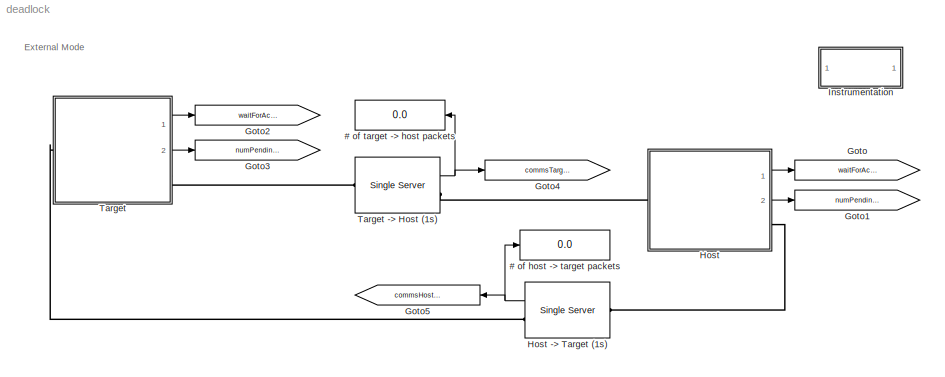
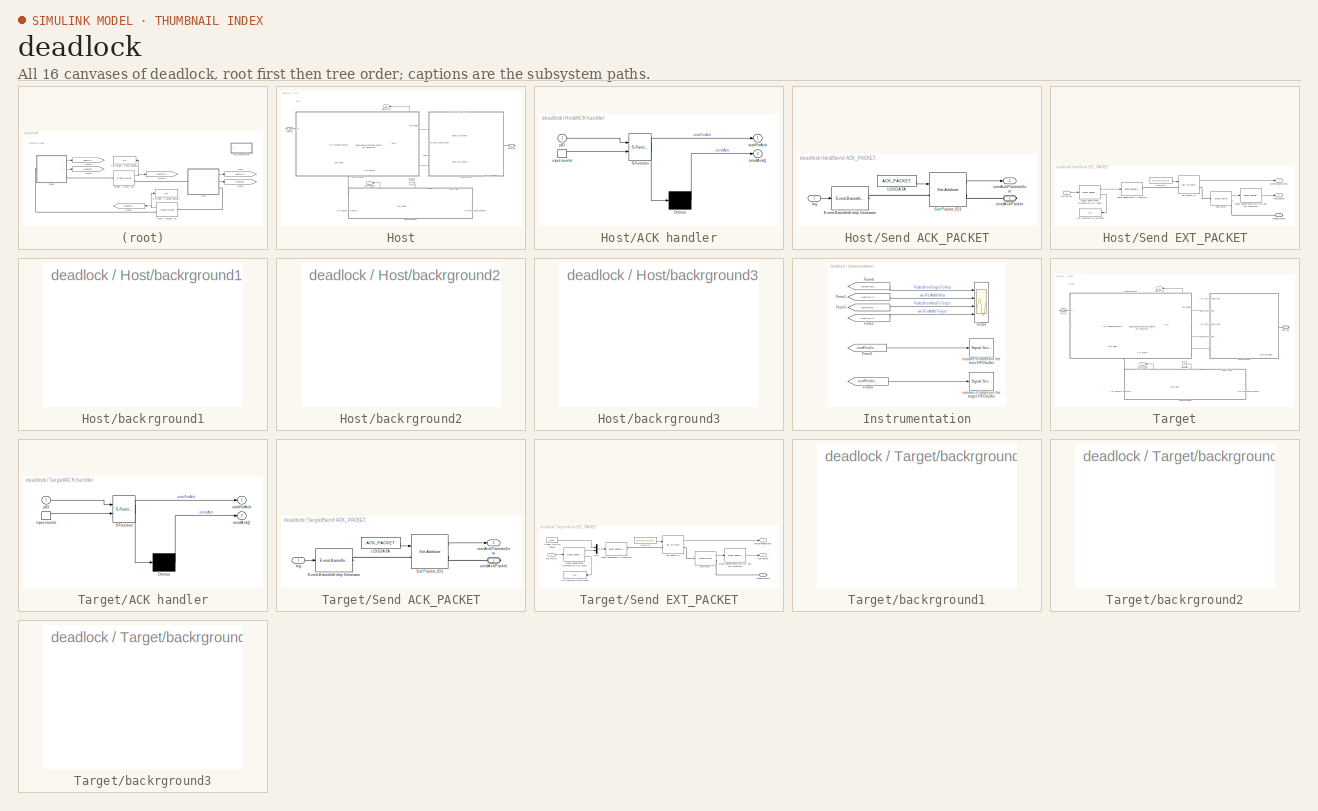
[diagram: thumbnail index - all 16 canvases of the model, root first then tree order]
MODEL deadlock
KIND model
CONFIG InitFcn = EXT_PACKET = 1;\nACK_PACKET = 2;\nRX = 1;\nTX = 2;\nCOMMS_DELAY = 1;\n\n
BLOCK [Display] # of host -> target packets
  Decimation = 1
  Ports = [1]
  SID = 13305
BLOCK [Display] # of target -> host packets
  Decimation = 1
  Ports = [1]
  SID = 13304
BLOCK [Goto] Goto
  GotoTag = waitForAckOnHost
  SID = 5305
  TagVisibility = global
BLOCK [Goto] Goto1
  GotoTag = numPendingOnHost
  SID = 5307
  TagVisibility = global
BLOCK [Goto] Goto2
  GotoTag = waitForAckOnTarget
  SID = 5325
  TagVisibility = global
BLOCK [Goto] Goto3
  GotoTag = numPendingOnTarget
  SID = 5326
  TagVisibility = global
BLOCK [Goto] Goto4
  GotoTag = commsTargetToHost
  SID = 8656
  TagVisibility = global
BLOCK [Goto] Goto5
  GotoTag = commsHostToTarget
  SID = 11776
  TagVisibility = global
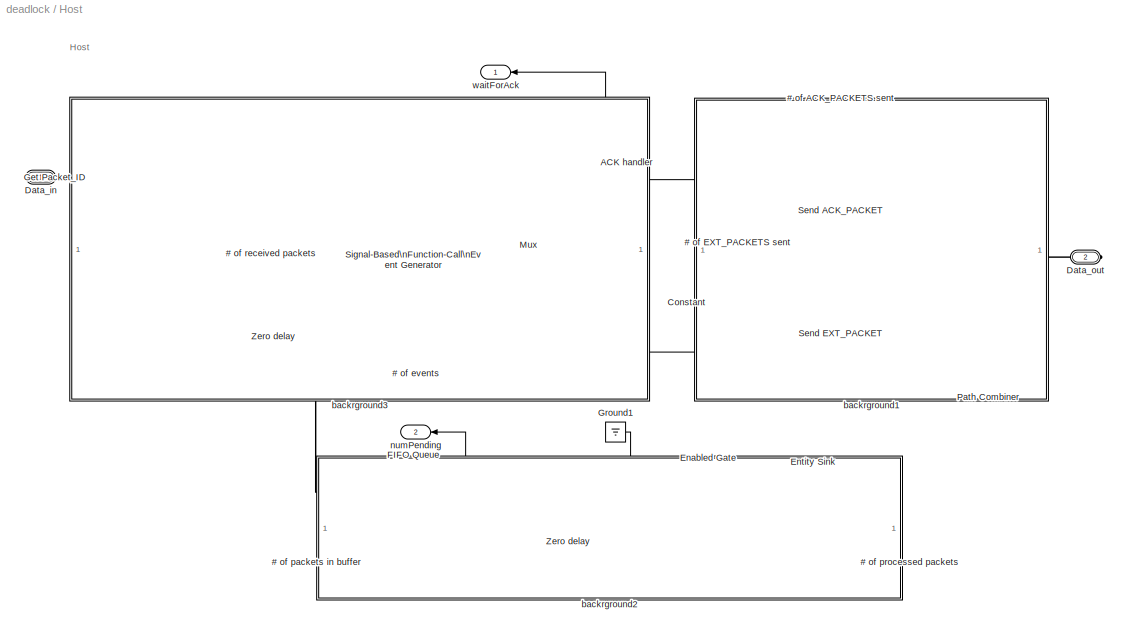
BLOCK [SubSystem] Host
  Ports = [0, 2, 0, 0, 0, 1, 1]
  RequestExecContextInheritance = off
  SID = 2100
BLOCK [Reference] Host -> Target (1s)  REF=simeventsserver1/Single Server
  AttributeName = ServiceTime
  CreateAttribute = on
  EnableTOPort = off
  FunctionWithSeparateData = off
  PermitPreemption = off
  Ports = [0, 1, 0, 0, 0, 1, 1]
  Priority = 1
  PriorityServiceCompletion = 1
  RTWMemSecDataConstants = Inherit from model
  RTWMemSecDataInternal = Inherit from model
  RTWMemSecDataParameters = Inherit from model
  RTWMemSecFuncExecute = Inherit from model
  RTWMemSecFuncInitTerm = Inherit from model
  ResidualAttributeName = ResidualServiceTime
  SID = 8654
  ServiceTime = COMMS_DELAY
  ServiceTimeFrom = Dialog
  ShowPortLabels = FromPortIcon
  SortingAttributeName = PriorityAttributeName
  SortingDirection = Ascending
  SourceBlock = simeventsserver1/Single Server
  SourceType = Single Server
  StatAverageWait = Off
  StatNumberDeparted = On
  StatNumberInBlock = Off
  StatNumberPreempted = Off
  StatNumberTimedout = Off
  StatPendingEntity = Off
  StatUtilization = Off
  SystemSampleTime = -1
  UserData = DataTag15
  UserDataPersistent = on
  WriteToAttribute = off
BLOCK [Display] Host/# of ACK_PACKETS sent
  Decimation = 1
  Ports = [1]
  SID = 15166
BLOCK [Display] Host/# of EXT_PACKETS sent
  Decimation = 1
  Ports = [1]
  SID = 15167
BLOCK [Display] Host/# of events
  Decimation = 1
  Ports = [1]
  SID = 12946
BLOCK [Display] Host/# of packets in buffer
  Decimation = 1
  Ports = [1]
  SID = 22557
BLOCK [Display] Host/# of processed packets
  Decimation = 1
  Ports = [1]
  SID = 2101
BLOCK [Display] Host/# of received packets
  Decimation = 1
  Ports = [1]
  SID = 17299
BLOCK [SubSystem] Host/ACK handler
  ErrorFcn = Stateflow.Translate.translate
  PermitHierarchicalResolution = ExplicitOnly
  Ports = [1, 2, 0, 1]
  PropExecContextOutsideSubsystem = on
  RequestExecContextInheritance = off
  SFBlockType = Chart
  SID = 23256
  TreatAsAtomicUnit = on
BLOCK [Demux] Host/ACK handler/ Demux 
  Outputs = 1
  Ports = [1, 1]
  SID = 23256::15
BLOCK [S-Function] Host/ACK handler/ SFunction 
  EnableBusSupport = off
  FunctionName = sf_sfun
  Parameters = ACK_PACKET,EXT_PACKET
  PortCounts = [2 2]
  Ports = [2, 2]
  SFcnIsStateOwnerBlock = off
  SFunctionDeploymentMode = off
  SID = 23256::14
  Tag = Stateflow S-Function 2
BLOCK [TriggerPort] Host/ACK handler/ input events 
  Ports = [0, 1]
  SID = 23256::1
  ShowOutputPort = on
  TriggerType = function-call
  VariantControl = (inherit)
BLOCK [Inport] Host/ACK handler/pID
  IconDisplay = Port number
  SID = 23256::10
BLOCK [Outport] Host/ACK handler/sendAck()
  IconDisplay = Port number
  Port = 2
  SID = 23256::13
BLOCK [Outport] Host/ACK handler/waitForAck
  IconDisplay = Port number
  SID = 23256::5
BLOCK [Constant] Host/Constant
  SID = 2376
BLOCK [PMIOPort] Host/Data_in
  SID = 2137
  Side = Left
BLOCK [PMIOPort] Host/Data_out
  Port = 2
  SID = 2138
  Side = Right
BLOCK [Reference] Host/Enabled Gate  REF=simeventsgates1/Enabled Gate
  FunctionWithSeparateData = off
  Ports = [1, 0, 0, 0, 0, 1, 1]
  Priority = 1
  PriorityGateEnableOpenClose = 2000
  RTWMemSecDataConstants = Inherit from model
  RTWMemSecDataInternal = Inherit from model
  RTWMemSecDataParameters = Inherit from model
  RTWMemSecFuncExecute = Inherit from model
  RTWMemSecFuncInitTerm = Inherit from model
  SID = 6011
  ShowPortLabels = FromPortIcon
  SourceBlock = simeventsgates1/Enabled Gate
  SourceType = Enabled Gate
  SpecifyEventPriority = off
  StatNumberDeparted = Off
  SystemSampleTime = -1
  UserData = DataTag0
  UserDataPersistent = on
BLOCK [Reference] Host/Entity Sink  REF=simeventssink1/Entity Sink
  AvailableForArrivals = on
  FunctionWithSeparateData = off
  Ports = [0, 1, 0, 0, 0, 1]
  Priority = 1
  RTWMemSecDataConstants = Inherit from model
  RTWMemSecDataInternal = Inherit from model
  RTWMemSecDataParameters = Inherit from model
  RTWMemSecFuncExecute = Inherit from model
  RTWMemSecFuncInitTerm = Inherit from model
  SID = 2103
  ShowPortLabels = FromPortIcon
  SourceBlock = simeventssink1/Entity Sink
  SourceType = Entity Sink
  StatNumberArrived = On
  SystemSampleTime = -1
  UserData = DataTag1
  UserDataPersistent = on
BLOCK [Reference] Host/FIFO Queue  REF=simeventsqueue1/FIFO Queue
  AttributesFormatString = Capacity = %<Capacity>
  Capacity = 2
  EnableTOPort = off
  FunctionWithSeparateData = off
  Ports = [0, 1, 0, 0, 0, 1, 1]
  Priority = 1
  RTWMemSecDataConstants = Inherit from model
  RTWMemSecDataInternal = Inherit from model
  RTWMemSecDataParameters = Inherit from model
  RTWMemSecFuncExecute = Inherit from model
  RTWMemSecFuncInitTerm = Inherit from model
  SID = 2104
  ShowPortLabels = FromPortIcon
  SourceBlock = simeventsqueue1/FIFO Queue
  SourceType = FIFO Queue
  StatAverageQueueLength = Off
  StatAverageWait = Off
  StatNumberDeparted = Off
  StatNumberInBlock = On
  StatNumberTimedout = Off
  StatPendingEntity = Off
  SystemSampleTime = -1
  UserData = DataTag2
  UserDataPersistent = on
BLOCK [Reference] Host/Get Packet_ID  REF=simeventsattributes2/Get Attribute
  AttributeDefaultValue = 1
  AttributeMissing = Error
  AttributeName = PacketID
  AttributeSendTiming = After entity departure
  AttributeTreatAsVector = 1
  EvaluatedDefaultAttributeValue = {[]}
  FunctionWithSeparateData = off
  Ports = [0, 1, 0, 0, 0, 1, 1]
  Priority = 1
  RTWMemSecDataConstants = Inherit from model
  RTWMemSecDataInternal = Inherit from model
  RTWMemSecDataParameters = Inherit from model
  RTWMemSecFuncExecute = Inherit from model
  RTWMemSecFuncInitTerm = Inherit from model
  SID = 2105
  ShowPortLabels = FromPortIcon
  SourceBlock = simeventsattributes2/Get Attribute
  SourceType = Get Attribute
  StatNumberDeparted = Off
  SystemSampleTime = -1
  UserData = DataTag3
  UserDataPersistent = on
BLOCK [Ground] Host/Ground1
  SID = 20376
BLOCK [Mux] Host/Mux
  DisplayOption = bar
  Inputs = 2
  Ports = [2, 1]
  SID = 19210
BLOCK [Reference] Host/Path Combiner  REF=simeventsrouting1/Path Combiner
  EvaluatedNumPorts = 2
  FunctionWithSeparateData = off
  InitialSeed = 45675
  InputPortPrecedence = IN1 port
  NumberInputPorts = 2
  Ports = [0, 0, 0, 0, 0, 2, 1]
  Priority = 1
  PriorityPathCombinerPortPrecedenceSelection = 4100
  RTWMemSecDataConstants = Inherit from model
  RTWMemSecDataInternal = Inherit from model
  RTWMemSecDataParameters = Inherit from model
  RTWMemSecFuncExecute = Inherit from model
  RTWMemSecFuncInitTerm = Inherit from model
  SID = 2108
  ShowPortLabels = FromPortIcon
  SourceBlock = simeventsrouting1/Path Combiner
  SourceType = Path Combiner
  SpecifyEventPriority = off
  StatLastArrivalPort = Off
  StatNumberDeparted = Off
  SystemSampleTime = -1
  UserData = DataTag4
  UserDataPersistent = on
BLOCK [SubSystem] Host/Send ACK_PACKET
  Ports = [1, 1, 0, 0, 0, 0, 1]
  RequestExecContextInheritance = off
  SID = 2110
BLOCK [Reference] Host/Send ACK_PACKET/Event-Based\nEntity Generator  REF=simeventsgenerators1/Entity Generators/Event-Based\nEntity Generator
  AllowBlocking = on
  EntityType = Blank
  FunctionWithSeparateData = off
  GenerateEntitiesUpon = Function call from port fcn
  GenerateEntityAtSimulationStart = on
  Ports = [1, 0, 0, 0, 0, 0, 1]
  Priority = 1
  PriorityEntityGeneration = 300
  RTWMemSecDataConstants = Inherit from model
  RTWMemSecDataInternal = Inherit from model
  RTWMemSecDataParameters = Inherit from model
  RTWMemSecFuncExecute = Inherit from model
  RTWMemSecFuncInitTerm = Inherit from model
  ResponseDuringBlockage = Delay first pending entity
  SID = 2112
  ShowPortLabels = FromPortIcon
  SignalEdgeType = Rising
  SourceBlock = simeventsgenerators1/Entity Generators/Event-Based\nEntity Generator
  SourceType = Event-Based Entity Generator
  SpecifyEventPriority = off
  StatAverageIntergenerationTime = Off
  StatNumberDeparted = Off
  StatPendingEntity = Off
  SystemSampleTime = -1
  UserData = DataTag5
  UserDataPersistent = on
BLOCK [Constant] Host/Send ACK_PACKET/LOGDATA
  SID = 2113
  Value = ACK_PACKET
BLOCK [Reference] Host/Send ACK_PACKET/Set Packet_ID1  REF=simeventsattributes2/Set Attribute
  AttributeCreate = on
  AttributeFrom = Signal port
  AttributeName = PacketID
  AttributeTreatAsVector = 1
  AttributeValue = 1
  EvaluatedAttributeValue = {[]}
  FunctionWithSeparateData = off
  Ports = [1, 1, 0, 0, 0, 1, 1]
  Priority = 1
  RTWMemSecDataConstants = Inherit from model
  RTWMemSecDataInternal = Inherit from model
  RTWMemSecDataParameters = Inherit from model
  RTWMemSecFuncExecute = Inherit from model
  RTWMemSecFuncInitTerm = Inherit from model
  SID = 2114
  ShowPortLabels = FromPortIcon
  SourceBlock = simeventsattributes2/Set Attribute
  SourceType = Set Attribute
  StatNumberDeparted = On
  SystemSampleTime = -1
  UserData = DataTag6
  UserDataPersistent = on
BLOCK [Outport] Host/Send ACK_PACKET/numAckPacketsSent
  IconDisplay = Port number
  SID = 15165
BLOCK [PMIOPort] Host/Send ACK_PACKET/sendAckPacket
  SID = 2116
  Side = Right
BLOCK [Inport] Host/Send ACK_PACKET/trig
  IconDisplay = Port number
  SID = 2111
BLOCK [SubSystem] Host/Send EXT_PACKET
  Ports = [1, 2, 0, 0, 0, 0, 1]
  RequestExecContextInheritance = off
  SID = 22444
BLOCK [Display] Host/Send EXT_PACKET/# of received ACK_PACKETS
  Decimation = 1
  Ports = [1]
  SID = 22446
BLOCK [Reference] Host/Send EXT_PACKET/Event-Based\nEntity Generator  REF=simeventsgenerators1/Entity Generators/Event-Based\nEntity Generator
  AllowBlocking = on
  EntityType = Blank
  FunctionWithSeparateData = off
  GenerateEntitiesUpon = Function call from port fcn
  GenerateEntityAtSimulationStart = on
  Ports = [1, 0, 0, 0, 0, 0, 1]
  Priority = 1
  PriorityEntityGeneration = 300
  RTWMemSecDataConstants = Inherit from model
  RTWMemSecDataInternal = Inherit from model
  RTWMemSecDataParameters = Inherit from model
  RTWMemSecFuncExecute = Inherit from model
  RTWMemSecFuncInitTerm = Inherit from model
  ResponseDuringBlockage = Delay first pending entity
  SID = 22447
  ShowPortLabels = FromPortIcon
  SignalEdgeType = Falling
  SourceBlock = simeventsgenerators1/Entity Generators/Event-Based\nEntity Generator
  SourceType = Event-Based Entity Generator
  SpecifyEventPriority = off
  StatAverageIntergenerationTime = Off
  StatNumberDeparted = Off
  StatPendingEntity = Off
  SystemSampleTime = -1
  UserData = DataTag7
  UserDataPersistent = on
BLOCK [Constant] Host/Send EXT_PACKET/LOGDATA
  SID = 22448
  Value = EXT_PACKET
BLOCK [Reference] Host/Send EXT_PACKET/Set Packet_ID  REF=simeventsattributes2/Set Attribute
  AttributeCreate = on
  AttributeFrom = Signal port
  AttributeName = PacketID
  AttributeTreatAsVector = 1
  AttributeValue = 1
  EvaluatedAttributeValue = {[]}
  FunctionWithSeparateData = off
  Ports = [1, 1, 0, 0, 0, 1, 1]
  Priority = 1
  RTWMemSecDataConstants = Inherit from model
  RTWMemSecDataInternal = Inherit from model
  RTWMemSecDataParameters = Inherit from model
  RTWMemSecFuncExecute = Inherit from model
  RTWMemSecFuncInitTerm = Inherit from model
  SID = 22450
  ShowPortLabels = FromPortIcon
  SourceBlock = simeventsattributes2/Set Attribute
  SourceType = Set Attribute
  StatNumberDeparted = On
  SystemSampleTime = -1
  UserData = DataTag8
  UserDataPersistent = on
BLOCK [Reference] Host/Send EXT_PACKET/Signal-Based Event to\nFunction-Call Event  REF=simeventstranslate1/Signal-Based Event to\nFunction-Call Event
  DelayFunctionCall = 0
  EnableE1Port = off
  EnableE2Port = off
  EnableF2Port = off
  FunctionCallDelayFrom = Dialog
  FunctionWithSeparateData = off
  GenerateFunctionCallUpon = Change in signal from port vc
  MaskBlockType = none
  Ports = [1, 2]
  Priority = 1
  PriorityFunctionCall = 200
  RTWMemSecDataConstants = Inherit from model
  RTWMemSecDataInternal = Inherit from model
  RTWMemSecDataParameters = Inherit from model
  RTWMemSecFuncExecute = Inherit from model
  RTWMemSecFuncInitTerm = Inherit from model
  SID = 22452
  ShowPortLabels = FromPortIcon
  SignalEdgeOption = Falling
  SourceBlock = simeventstranslate1/Signal-Based Event to\nFunction-Call Event
  SourceType = Signal-Based Event to Function-Call Event
  SpecifyEventPriority = off
  StatNumberF1Calls = On
  StatNumberF2Calls = Off
  SystemSampleTime = -1
  UserData = DataTag10
  UserDataPersistent = on
BLOCK [Reference] Host/Send EXT_PACKET/Signal-Based\nFunction-Call\nEvent Generator  REF=simeventsgenerators1/Event Generators/Signal-Based\nFunction-Call\nEvent Generator
  DelayFunctionCall = 0
  EnableE1Port = off
  EnableE2Port = off
  EnableF2Port = off
  FunctionCallDelayFrom = Dialog
  FunctionWithSeparateData = off
  GenerateFunctionCallUpon = Change in signal from port vc
  MaskBlockType = none
  Ports = [1, 1]
  Priority = 1
  PriorityFunctionCall = 200
  RTWMemSecDataConstants = Inherit from model
  RTWMemSecDataInternal = Inherit from model
  RTWMemSecDataParameters = Inherit from model
  RTWMemSecFuncExecute = Inherit from model
  RTWMemSecFuncInitTerm = Inherit from model
  SID = 22451
  ShowPortLabels = FromPortIcon
  SignalEdgeOption = Either
  SourceBlock = simeventsgenerators1/Event Generators/Signal-Based\nFunction-Call\nEvent Generator
  SourceType = Signal-Based Function-Call Event Generator
  SpecifyEventPriority = off
  StatNumberF1Calls = Off
  StatNumberF2Calls = Off
  SystemSampleTime = -1
  UserData = DataTag9
  UserDataPersistent = on
BLOCK [Reference] Host/Send EXT_PACKET/Zero delay   REF=simeventsserver1/Single Server
  AttributeName = ServiceTime
  CreateAttribute = on
  EnableTOPort = off
  FunctionWithSeparateData = off
  PermitPreemption = off
  Ports = [0, 1, 0, 0, 0, 1, 1]
  Priority = 1
  PriorityServiceCompletion = 1
  RTWMemSecDataConstants = Inherit from model
  RTWMemSecDataInternal = Inherit from model
  RTWMemSecDataParameters = Inherit from model
  RTWMemSecFuncExecute = Inherit from model
  RTWMemSecFuncInitTerm = Inherit from model
  ResidualAttributeName = ResidualServiceTime
  SID = 22453
  ServiceTime = 0
  ServiceTimeFrom = Dialog
  ShowPortLabels = FromPortIcon
  SortingAttributeName = PriorityAttributeName
  SortingDirection = Ascending
  SourceBlock = simeventsserver1/Single Server
  SourceType = Single Server
  StatAverageWait = Off
  StatNumberDeparted = Off
  StatNumberInBlock = On
  StatNumberPreempted = Off
  StatNumberTimedout = Off
  StatPendingEntity = Off
  StatUtilization = Off
  SystemSampleTime = -1
  UserData = DataTag11
  UserDataPersistent = on
  WriteToAttribute = off
BLOCK [Outport] Host/Send EXT_PACKET/numExtPacketsSent
  IconDisplay = Port number
  SID = 22456
BLOCK [PMIOPort] Host/Send EXT_PACKET/sendExtPacket
  SID = 22455
  Side = Right
BLOCK [Outport] Host/Send EXT_PACKET/txExtPacket
  IconDisplay = Port number
  Port = 2
  SID = 22457
BLOCK [Inport] Host/Send EXT_PACKET/waitForAck
  IconDisplay = Port number
  SID = 22445
BLOCK [Reference] Host/Signal-Based\nFunction-Call\nEvent Generator  REF=simeventsgenerators1/Event Generators/Signal-Based\nFunction-Call\nEvent Generator
  DelayFunctionCall = 0
  EnableE1Port = off
  EnableE2Port = off
  EnableF2Port = off
  FunctionCallDelayFrom = Dialog
  FunctionWithSeparateData = off
  GenerateFunctionCallUpon = Change in signal from port vc
  MaskBlockType = none
  Ports = [1, 2]
  Priority = 1
  PriorityFunctionCall = 200
  RTWMemSecDataConstants = Inherit from model
  RTWMemSecDataInternal = Inherit from model
  RTWMemSecDataParameters = Inherit from model
  RTWMemSecFuncExecute = Inherit from model
  RTWMemSecFuncInitTerm = Inherit from model
  SID = 7129
  ShowPortLabels = FromPortIcon
  SignalEdgeOption = Either
  SourceBlock = simeventsgenerators1/Event Generators/Signal-Based\nFunction-Call\nEvent Generator
  SourceType = Signal-Based Function-Call Event Generator
  SpecifyEventPriority = off
  StatNumberF1Calls = On
  StatNumberF2Calls = Off
  SystemSampleTime = -1
  UserData = DataTag12
  UserDataPersistent = on
BLOCK [Reference] Host/Zero delay  REF=simeventsserver1/Single Server
  AttributeName = ServiceTime
  CreateAttribute = on
  EnableTOPort = off
  FunctionWithSeparateData = off
  PermitPreemption = off
  Ports = [0, 0, 0, 0, 0, 1, 1]
  Priority = 1
  PriorityServiceCompletion = 1
  RTWMemSecDataConstants = Inherit from model
  RTWMemSecDataInternal = Inherit from model
  RTWMemSecDataParameters = Inherit from model
  RTWMemSecFuncExecute = Inherit from model
  RTWMemSecFuncInitTerm = Inherit from model
  ResidualAttributeName = ResidualServiceTime
  SID = 2657
  ServiceTime = 0
  ServiceTimeFrom = Dialog
  ShowPortLabels = FromPortIcon
  SortingAttributeName = PriorityAttributeName
  SortingDirection = Ascending
  SourceBlock = simeventsserver1/Single Server
  SourceType = Single Server
  StatAverageWait = Off
  StatNumberDeparted = Off
  StatNumberInBlock = Off
  StatNumberPreempted = Off
  StatNumberTimedout = Off
  StatPendingEntity = Off
  StatUtilization = Off
  SystemSampleTime = -1
  UserData = DataTag13
  UserDataPersistent = on
  WriteToAttribute = off
BLOCK [Reference] Host/Zero delay   REF=simeventsserver1/Single Server
  AttributeName = ServiceTime
  CreateAttribute = on
  EnableTOPort = off
  FunctionWithSeparateData = off
  PermitPreemption = off
  Ports = [0, 2, 0, 0, 0, 1, 1]
  Priority = 1
  PriorityServiceCompletion = 1
  RTWMemSecDataConstants = Inherit from model
  RTWMemSecDataInternal = Inherit from model
  RTWMemSecDataParameters = Inherit from model
  RTWMemSecFuncExecute = Inherit from model
  RTWMemSecFuncInitTerm = Inherit from model
  ResidualAttributeName = ResidualServiceTime
  SID = 7805
  ServiceTime = 0
  ServiceTimeFrom = Dialog
  ShowPortLabels = FromPortIcon
  SortingAttributeName = PriorityAttributeName
  SortingDirection = Ascending
  SourceBlock = simeventsserver1/Single Server
  SourceType = Single Server
  StatAverageWait = Off
  StatNumberDeparted = On
  StatNumberInBlock = On
  StatNumberPreempted = Off
  StatNumberTimedout = Off
  StatPendingEntity = Off
  StatUtilization = Off
  SystemSampleTime = -1
  UserData = DataTag14
  UserDataPersistent = on
  WriteToAttribute = off
BLOCK [SubSystem] Host/backrground1
  Ports = []
  RequestExecContextInheritance = off
  SID = 20461
BLOCK [SubSystem] Host/backrground2
  Ports = []
  RequestExecContextInheritance = off
  SID = 20460
BLOCK [SubSystem] Host/backrground3
  Ports = []
  RequestExecContextInheritance = off
  SID = 20462
BLOCK [Outport] Host/numPending
  IconDisplay = Port number
  Port = 2
  SID = 5308
BLOCK [Outport] Host/waitForAck
  IconDisplay = Port number
  SID = 5306
BLOCK [SubSystem] Instrumentation
  Ports = []
  RequestExecContextInheritance = on
  SID = 4
BLOCK [From] Instrumentation/From1
  CloseFcn = tagdialog Close
  GotoTag = waitForAckOnHost
  SID = 22
  TagVisibility = global
BLOCK [From] Instrumentation/From2
  CloseFcn = tagdialog Close
  GotoTag = waitForAckOnTarget
  SID = 2512
  TagVisibility = global
BLOCK [From] Instrumentation/From3
  CloseFcn = tagdialog Close
  GotoTag = numPendingOnHost
  SID = 24
  TagVisibility = global
BLOCK [From] Instrumentation/From4
  CloseFcn = tagdialog Close
  GotoTag = numPendingOnTarget
  SID = 2513
  TagVisibility = global
BLOCK [From] Instrumentation/From5
  CloseFcn = tagdialog Close
  GotoTag = commsHostToTarget
  SID = 11777
  TagVisibility = global
BLOCK [From] Instrumentation/From6
  CloseFcn = tagdialog Close
  GotoTag = commsTargetToHost
  SID = 11778
  TagVisibility = global
BLOCK [Scope] Instrumentation/Scope
  Floating = off
  NumInputPorts = 4
  Ports = [4]
  SID = 343
  ScopeSpecificationString = C++SS(StrPVP('Location','[888, 200, 1214, 665]'),StrPVP('Open','off'),MxPVP('AxesTitles',54,'struct(''axes1'',''%<SignalLabel>'',''axes2'',''%<SignalLabel>'',''axes3'',''%<SignalLabel>'',''axes4'',''%<SignalLabel>'')'),StrPVP('TimeRange','10'),StrPVP('YMin','-1~-1~-1~-1'),StrPVP('YMax','5~5~5~5'),StrPVP('DataFormat','StructureWithTime'),StrPVP('LimitDataPoints','off'),StrPVP('BlockParamSampleTime'...<+69ch>
BLOCK [Reference] Instrumentation/number of bytes\nin the host FIFO buffer  REF=simeventssink1/Signal Scope
  AttributeNameX = Count
  AttributeNameY = Count
  AxisGrid = on
  AxisLegend = off
  AxisZoom = off
  DataPointsLimit = 10000
  DataStoreOption = Limited
  EnableEntityOutport = on
  FigurePosition = [72 229 231 135]
  FunctionWithSeparateData = off
  InputType = Signal
  LineColors = b
  LineMarkers = .
  LineStyles = -
  NumInputs = 1
  OpenScopeAtSimStart = on
  PlotType = Stair
  Ports = [1]
  Priority = 1
  RTWMemSecDataConstants = Inherit from model
  RTWMemSecDataInternal = Inherit from model
  RTWMemSecDataParameters = Inherit from model
  RTWMemSecFuncExecute = Inherit from model
  RTWMemSecFuncInitTerm = Inherit from model
  SID = 5
  ShowCountPlotted = off
  ShowPortLabels = FromPortIcon
  ShowToolbar = on
  SourceBlock = simeventssink1/Signal Scope
  SourceType = Signal Scope
  StatNumberArrived = Off
  SystemSampleTime = -1
  Title = Packets in host buffer
  UserData = DataTag16
  UserDataPersistent = on
  XInputOptionEntity = Event time
  XInputOptionSignal = Event time
  XLabel = Time
  XLimitExceededOption = Stretch axis limits
  XMax = 10
  XMin = 0
  YLabel = #n
  YLimitExceededOption = Stretch axis limits
  YMax = 3
  YMin = -1
BLOCK [Reference] Instrumentation/number of bytes\nin the target FIFO buffer  REF=simeventssink1/Signal Scope
  AttributeNameX = Count
  AttributeNameY = Count
  AxisGrid = on
  AxisLegend = off
  AxisZoom = off
  DataPointsLimit = 10000
  DataStoreOption = Limited
  EnableEntityOutport = on
  FigurePosition = [72 229 231 135]
  FunctionWithSeparateData = off
  InputType = Signal
  LineColors = b
  LineMarkers = .
  LineStyles = -
  NumInputs = 1
  OpenScopeAtSimStart = on
  PlotType = Stair
  Ports = [1]
  Priority = 1
  RTWMemSecDataConstants = Inherit from model
  RTWMemSecDataInternal = Inherit from model
  RTWMemSecDataParameters = Inherit from model
  RTWMemSecFuncExecute = Inherit from model
  RTWMemSecFuncInitTerm = Inherit from model
  SID = 2515
  ShowCountPlotted = off
  ShowPortLabels = FromPortIcon
  ShowToolbar = on
  SourceBlock = simeventssink1/Signal Scope
  SourceType = Signal Scope
  StatNumberArrived = Off
  SystemSampleTime = -1
  Title = Packets in target buffer
  UserData = DataTag17
  UserDataPersistent = on
  XInputOptionEntity = Event time
  XInputOptionSignal = Event time
  XLabel = Time
  XLimitExceededOption = Stretch axis limits
  XMax = 10
  XMin = 0
  YLabel = #n
  YLimitExceededOption = Stretch axis limits
  YMax = 3
  YMin = -1
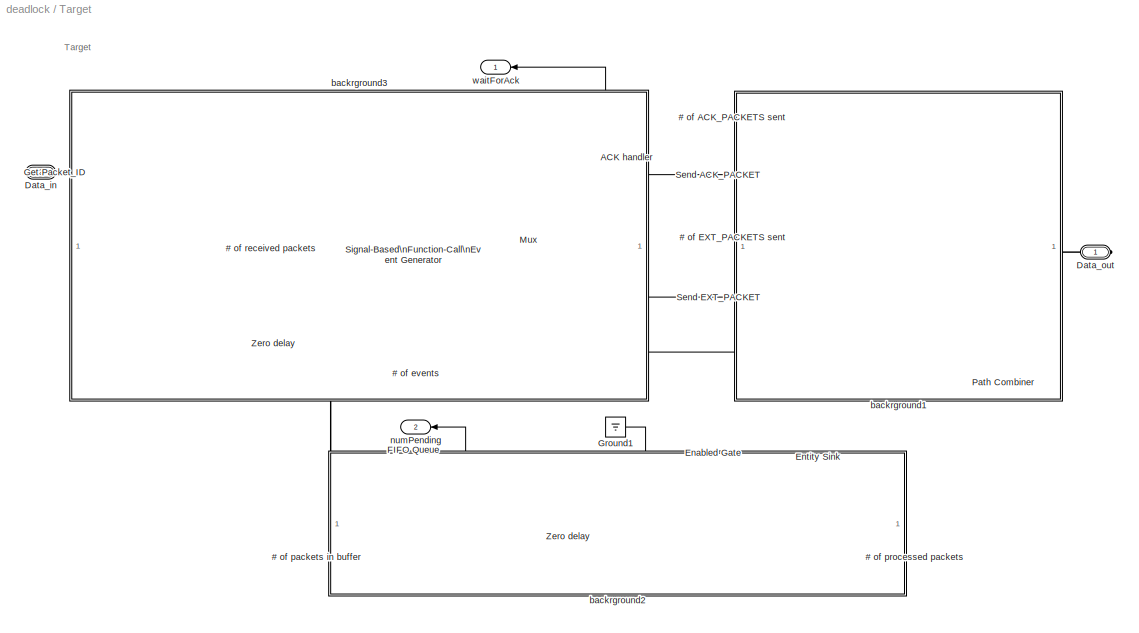
BLOCK [SubSystem] Target
  Ports = [0, 2, 0, 0, 0, 1, 1]
  RequestExecContextInheritance = off
  SID = 1342
BLOCK [Reference] Target -> Host (1s)  REF=simeventsserver1/Single Server
  AttributeName = ServiceTime
  CreateAttribute = on
  EnableTOPort = off
  FunctionWithSeparateData = off
  PermitPreemption = off
  Ports = [0, 1, 0, 0, 0, 1, 1]
  Priority = 1
  PriorityServiceCompletion = 1
  RTWMemSecDataConstants = Inherit from model
  RTWMemSecDataInternal = Inherit from model
  RTWMemSecDataParameters = Inherit from model
  RTWMemSecFuncExecute = Inherit from model
  RTWMemSecFuncInitTerm = Inherit from model
  ResidualAttributeName = ResidualServiceTime
  SID = 8653
  ServiceTime = COMMS_DELAY
  ServiceTimeFrom = Dialog
  ShowPortLabels = FromPortIcon
  SortingAttributeName = PriorityAttributeName
  SortingDirection = Ascending
  SourceBlock = simeventsserver1/Single Server
  SourceType = Single Server
  StatAverageWait = Off
  StatNumberDeparted = On
  StatNumberInBlock = Off
  StatNumberPreempted = Off
  StatNumberTimedout = Off
  StatPendingEntity = Off
  StatUtilization = Off
  SystemSampleTime = -1
  UserData = DataTag33
  UserDataPersistent = on
  WriteToAttribute = off
BLOCK [Display] Target/# of ACK_PACKETS sent
  Decimation = 1
  Ports = [1]
  SID = 15689
BLOCK [Display] Target/# of EXT_PACKETS sent
  Decimation = 1
  Ports = [1]
  SID = 15690
BLOCK [Display] Target/# of events
  Decimation = 1
  Ports = [1]
  SID = 20464
BLOCK [Display] Target/# of packets in buffer
  Decimation = 1
  Ports = [1]
  SID = 22657
BLOCK [Display] Target/# of processed packets
  Decimation = 1
  Ports = [1]
  SID = 20481
BLOCK [Display] Target/# of received packets
  Decimation = 1
  Ports = [1]
  SID = 20465
BLOCK [SubSystem] Target/ACK handler
  ErrorFcn = Stateflow.Translate.translate
  PermitHierarchicalResolution = ExplicitOnly
  Ports = [1, 2, 0, 1]
  PropExecContextOutsideSubsystem = on
  RequestExecContextInheritance = off
  SFBlockType = Chart
  SID = 23455
  TreatAsAtomicUnit = on
BLOCK [Demux] Target/ACK handler/ Demux 
  Outputs = 1
  Ports = [1, 1]
  SID = 23455::15
BLOCK [S-Function] Target/ACK handler/ SFunction 
  EnableBusSupport = off
  FunctionName = sf_sfun
  Parameters = ACK_PACKET,EXT_PACKET
  PortCounts = [2 2]
  Ports = [2, 2]
  SFcnIsStateOwnerBlock = off
  SFunctionDeploymentMode = off
  SID = 23455::14
  Tag = Stateflow S-Function 1
BLOCK [TriggerPort] Target/ACK handler/ input events 
  Ports = [0, 1]
  SID = 23455::1
  ShowOutputPort = on
  TriggerType = function-call
  VariantControl = (inherit)
BLOCK [Inport] Target/ACK handler/pID
  IconDisplay = Port number
  SID = 23455::10
BLOCK [Outport] Target/ACK handler/sendAck()
  IconDisplay = Port number
  Port = 2
  SID = 23455::13
BLOCK [Outport] Target/ACK handler/waitForAck
  IconDisplay = Port number
  SID = 23455::5
BLOCK [PMIOPort] Target/Data_in
  Port = 2
  SID = 20478
  Side = Left
BLOCK [PMIOPort] Target/Data_out
  SID = 1371
  Side = Right
BLOCK [Reference] Target/Enabled Gate  REF=simeventsgates1/Enabled Gate
  FunctionWithSeparateData = off
  Ports = [1, 0, 0, 0, 0, 1, 1]
  Priority = 1
  PriorityGateEnableOpenClose = 2000
  RTWMemSecDataConstants = Inherit from model
  RTWMemSecDataInternal = Inherit from model
  RTWMemSecDataParameters = Inherit from model
  RTWMemSecFuncExecute = Inherit from model
  RTWMemSecFuncInitTerm = Inherit from model
  SID = 20482
  ShowPortLabels = FromPortIcon
  SourceBlock = simeventsgates1/Enabled Gate
  SourceType = Enabled Gate
  SpecifyEventPriority = off
  StatNumberDeparted = Off
  SystemSampleTime = -1
  UserData = DataTag18
  UserDataPersistent = on
BLOCK [Reference] Target/Entity Sink  REF=simeventssink1/Entity Sink
  AvailableForArrivals = on
  FunctionWithSeparateData = off
  Ports = [0, 1, 0, 0, 0, 1]
  Priority = 1
  RTWMemSecDataConstants = Inherit from model
  RTWMemSecDataInternal = Inherit from model
  RTWMemSecDataParameters = Inherit from model
  RTWMemSecFuncExecute = Inherit from model
  RTWMemSecFuncInitTerm = Inherit from model
  SID = 20483
  ShowPortLabels = FromPortIcon
  SourceBlock = simeventssink1/Entity Sink
  SourceType = Entity Sink
  StatNumberArrived = On
  SystemSampleTime = -1
  UserData = DataTag19
  UserDataPersistent = on
BLOCK [Reference] Target/FIFO Queue  REF=simeventsqueue1/FIFO Queue
  AttributesFormatString = Capacity = %<Capacity>
  Capacity = 2
  EnableTOPort = off
  FunctionWithSeparateData = off
  Ports = [0, 1, 0, 0, 0, 1, 1]
  Priority = 1
  RTWMemSecDataConstants = Inherit from model
  RTWMemSecDataInternal = Inherit from model
  RTWMemSecDataParameters = Inherit from model
  RTWMemSecFuncExecute = Inherit from model
  RTWMemSecFuncInitTerm = Inherit from model
  SID = 20468
  ShowPortLabels = FromPortIcon
  SourceBlock = simeventsqueue1/FIFO Queue
  SourceType = FIFO Queue
  StatAverageQueueLength = Off
  StatAverageWait = Off
  StatNumberDeparted = Off
  StatNumberInBlock = On
  StatNumberTimedout = Off
  StatPendingEntity = Off
  SystemSampleTime = -1
  UserData = DataTag20
  UserDataPersistent = on
BLOCK [Reference] Target/Get Packet_ID  REF=simeventsattributes2/Get Attribute
  AttributeDefaultValue = 1
  AttributeMissing = Error
  AttributeName = PacketID
  AttributeSendTiming = After entity departure
  AttributeTreatAsVector = 1
  EvaluatedDefaultAttributeValue = {[]}
  FunctionWithSeparateData = off
  Ports = [0, 1, 0, 0, 0, 1, 1]
  Priority = 1
  RTWMemSecDataConstants = Inherit from model
  RTWMemSecDataInternal = Inherit from model
  RTWMemSecDataParameters = Inherit from model
  RTWMemSecFuncExecute = Inherit from model
  RTWMemSecFuncInitTerm = Inherit from model
  SID = 20469
  ShowPortLabels = FromPortIcon
  SourceBlock = simeventsattributes2/Get Attribute
  SourceType = Get Attribute
  StatNumberDeparted = Off
  SystemSampleTime = -1
  UserData = DataTag21
  UserDataPersistent = on
BLOCK [Ground] Target/Ground1
  SID = 20471
BLOCK [Mux] Target/Mux
  DisplayOption = bar
  Inputs = 2
  Ports = [2, 1]
  SID = 20472
BLOCK [Reference] Target/Path Combiner  REF=simeventsrouting1/Path Combiner
  EvaluatedNumPorts = 2
  FunctionWithSeparateData = off
  InitialSeed = 45675
  InputPortPrecedence = IN1 port
  NumberInputPorts = 2
  Ports = [0, 0, 0, 0, 0, 2, 1]
  Priority = 1
  PriorityPathCombinerPortPrecedenceSelection = 4100
  RTWMemSecDataConstants = Inherit from model
  RTWMemSecDataInternal = Inherit from model
  RTWMemSecDataParameters = Inherit from model
  RTWMemSecFuncExecute = Inherit from model
  RTWMemSecFuncInitTerm = Inherit from model
  SID = 15691
  ShowPortLabels = FromPortIcon
  SourceBlock = simeventsrouting1/Path Combiner
  SourceType = Path Combiner
  SpecifyEventPriority = off
  StatLastArrivalPort = Off
  StatNumberDeparted = Off
  SystemSampleTime = -1
  UserData = DataTag22
  UserDataPersistent = on
BLOCK [SubSystem] Target/Send ACK_PACKET
  Ports = [1, 1, 0, 0, 0, 0, 1]
  RequestExecContextInheritance = off
  SID = 22437
BLOCK [Reference] Target/Send ACK_PACKET/Event-Based\nEntity Generator  REF=simeventsgenerators1/Entity Generators/Event-Based\nEntity Generator
  AllowBlocking = on
  EntityType = Blank
  FunctionWithSeparateData = off
  GenerateEntitiesUpon = Function call from port fcn
  GenerateEntityAtSimulationStart = on
  Ports = [1, 0, 0, 0, 0, 0, 1]
  Priority = 1
  PriorityEntityGeneration = 300
  RTWMemSecDataConstants = Inherit from model
  RTWMemSecDataInternal = Inherit from model
  RTWMemSecDataParameters = Inherit from model
  RTWMemSecFuncExecute = Inherit from model
  RTWMemSecFuncInitTerm = Inherit from model
  ResponseDuringBlockage = Delay first pending entity
  SID = 22439
  ShowPortLabels = FromPortIcon
  SignalEdgeType = Rising
  SourceBlock = simeventsgenerators1/Entity Generators/Event-Based\nEntity Generator
  SourceType = Event-Based Entity Generator
  SpecifyEventPriority = off
  StatAverageIntergenerationTime = Off
  StatNumberDeparted = Off
  StatPendingEntity = Off
  SystemSampleTime = -1
  UserData = DataTag23
  UserDataPersistent = on
BLOCK [Constant] Target/Send ACK_PACKET/LOGDATA
  SID = 22440
  Value = ACK_PACKET
BLOCK [Reference] Target/Send ACK_PACKET/Set Packet_ID1  REF=simeventsattributes2/Set Attribute
  AttributeCreate = on
  AttributeFrom = Signal port
  AttributeName = PacketID
  AttributeTreatAsVector = 1
  AttributeValue = 1
  EvaluatedAttributeValue = {[]}
  FunctionWithSeparateData = off
  Ports = [1, 1, 0, 0, 0, 1, 1]
  Priority = 1
  RTWMemSecDataConstants = Inherit from model
  RTWMemSecDataInternal = Inherit from model
  RTWMemSecDataParameters = Inherit from model
  RTWMemSecFuncExecute = Inherit from model
  RTWMemSecFuncInitTerm = Inherit from model
  SID = 22441
  ShowPortLabels = FromPortIcon
  SourceBlock = simeventsattributes2/Set Attribute
  SourceType = Set Attribute
  StatNumberDeparted = On
  SystemSampleTime = -1
  UserData = DataTag24
  UserDataPersistent = on
BLOCK [Outport] Target/Send ACK_PACKET/numAckPacketsSent
  IconDisplay = Port number
  SID = 22443
BLOCK [PMIOPort] Target/Send ACK_PACKET/sendAckPacket
  SID = 22442
  Side = Right
BLOCK [Inport] Target/Send ACK_PACKET/trig
  IconDisplay = Port number
  SID = 22438
BLOCK [SubSystem] Target/Send EXT_PACKET
  Ports = [1, 2, 0, 0, 0, 0, 1]
  RequestExecContextInheritance = off
  SID = 15700
BLOCK [Display] Target/Send EXT_PACKET/# of received ACK_PACKETS
  Decimation = 1
  Ports = [1]
  SID = 15711
BLOCK [Reference] Target/Send EXT_PACKET/Event-Based\nEntity Generator  REF=simeventsgenerators1/Entity Generators/Event-Based\nEntity Generator
  AllowBlocking = on
  EntityType = Blank
  FunctionWithSeparateData = off
  GenerateEntitiesUpon = Function call from port fcn
  GenerateEntityAtSimulationStart = on
  Ports = [1, 0, 0, 0, 0, 0, 1]
  Priority = 1
  PriorityEntityGeneration = 300
  RTWMemSecDataConstants = Inherit from model
  RTWMemSecDataInternal = Inherit from model
  RTWMemSecDataParameters = Inherit from model
  RTWMemSecFuncExecute = Inherit from model
  RTWMemSecFuncInitTerm = Inherit from model
  ResponseDuringBlockage = Delay first pending entity
  SID = 15712
  ShowPortLabels = FromPortIcon
  SignalEdgeType = Falling
  SourceBlock = simeventsgenerators1/Entity Generators/Event-Based\nEntity Generator
  SourceType = Event-Based Entity Generator
  SpecifyEventPriority = off
  StatAverageIntergenerationTime = Off
  StatNumberDeparted = Off
  StatPendingEntity = Off
  SystemSampleTime = -1
  UserData = DataTag25
  UserDataPersistent = on
BLOCK [Constant] Target/Send EXT_PACKET/LOGDATA
  SID = 15704
  Value = EXT_PACKET
BLOCK [Mux] Target/Send EXT_PACKET/Mux
  DisplayOption = bar
  Inputs = 2
  Ports = [2, 1]
  SID = 21445
BLOCK [Reference] Target/Send EXT_PACKET/Set Packet_ID  REF=simeventsattributes2/Set Attribute
  AttributeCreate = on
  AttributeFrom = Signal port
  AttributeName = PacketID
  AttributeTreatAsVector = 1
  AttributeValue = 1
  EvaluatedAttributeValue = {[]}
  FunctionWithSeparateData = off
  Ports = [1, 1, 0, 0, 0, 1, 1]
  Priority = 1
  RTWMemSecDataConstants = Inherit from model
  RTWMemSecDataInternal = Inherit from model
  RTWMemSecDataParameters = Inherit from model
  RTWMemSecFuncExecute = Inherit from model
  RTWMemSecFuncInitTerm = Inherit from model
  SID = 15705
  ShowPortLabels = FromPortIcon
  SourceBlock = simeventsattributes2/Set Attribute
  SourceType = Set Attribute
  StatNumberDeparted = On
  SystemSampleTime = -1
  UserData = DataTag26
  UserDataPersistent = on
BLOCK [Reference] Target/Send EXT_PACKET/Signal-Based Event to\nFunction-Call Event  REF=simeventstranslate1/Signal-Based Event to\nFunction-Call Event
  DelayFunctionCall = 0
  EnableE1Port = off
  EnableE2Port = off
  EnableF2Port = off
  FunctionCallDelayFrom = Dialog
  FunctionWithSeparateData = off
  GenerateFunctionCallUpon = Change in signal from port vc
  MaskBlockType = none
  Ports = [1, 2]
  Priority = 1
  PriorityFunctionCall = 200
  RTWMemSecDataConstants = Inherit from model
  RTWMemSecDataInternal = Inherit from model
  RTWMemSecDataParameters = Inherit from model
  RTWMemSecFuncExecute = Inherit from model
  RTWMemSecFuncInitTerm = Inherit from model
  SID = 15714
  ShowPortLabels = FromPortIcon
  SignalEdgeOption = Falling
  SourceBlock = simeventstranslate1/Signal-Based Event to\nFunction-Call Event
  SourceType = Signal-Based Event to Function-Call Event
  SpecifyEventPriority = off
  StatNumberF1Calls = On
  StatNumberF2Calls = Off
  SystemSampleTime = -1
  UserData = DataTag28
  UserDataPersistent = on
BLOCK [Reference] Target/Send EXT_PACKET/Signal-Based\nFunction-Call\nEvent Generator  REF=simeventsgenerators1/Event Generators/Signal-Based\nFunction-Call\nEvent Generator
  DelayFunctionCall = 0
  EnableE1Port = off
  EnableE2Port = off
  EnableF2Port = off
  FunctionCallDelayFrom = Dialog
  FunctionWithSeparateData = off
  GenerateFunctionCallUpon = Change in signal from port vc
  MaskBlockType = none
  Ports = [1, 1]
  Priority = 1
  PriorityFunctionCall = 200
  RTWMemSecDataConstants = Inherit from model
  RTWMemSecDataInternal = Inherit from model
  RTWMemSecDataParameters = Inherit from model
  RTWMemSecFuncExecute = Inherit from model
  RTWMemSecFuncInitTerm = Inherit from model
  SID = 22249
  ShowPortLabels = FromPortIcon
  SignalEdgeOption = Either
  SourceBlock = simeventsgenerators1/Event Generators/Signal-Based\nFunction-Call\nEvent Generator
  SourceType = Signal-Based Function-Call Event Generator
  SpecifyEventPriority = off
  StatNumberF1Calls = Off
  StatNumberF2Calls = Off
  SystemSampleTime = -1
  UserData = DataTag27
  UserDataPersistent = on
BLOCK [Reference] Target/Send EXT_PACKET/Zero delay   REF=simeventsserver1/Single Server
  AttributeName = ServiceTime
  CreateAttribute = on
  EnableTOPort = off
  FunctionWithSeparateData = off
  PermitPreemption = off
  Ports = [0, 1, 0, 0, 0, 1, 1]
  Priority = 1
  PriorityServiceCompletion = 1
  RTWMemSecDataConstants = Inherit from model
  RTWMemSecDataInternal = Inherit from model
  RTWMemSecDataParameters = Inherit from model
  RTWMemSecFuncExecute = Inherit from model
  RTWMemSecFuncInitTerm = Inherit from model
  ResidualAttributeName = ResidualServiceTime
  SID = 22250
  ServiceTime = 0
  ServiceTimeFrom = Dialog
  ShowPortLabels = FromPortIcon
  SortingAttributeName = PriorityAttributeName
  SortingDirection = Ascending
  SourceBlock = simeventsserver1/Single Server
  SourceType = Single Server
  StatAverageWait = Off
  StatNumberDeparted = Off
  StatNumberInBlock = On
  StatNumberPreempted = Off
  StatNumberTimedout = Off
  StatPendingEntity = Off
  StatUtilization = Off
  SystemSampleTime = -1
  UserData = DataTag29
  UserDataPersistent = on
  WriteToAttribute = off
BLOCK [Outport] Target/Send EXT_PACKET/numExtPacketsSent
  IconDisplay = Port number
  SID = 15709
BLOCK [PMIOPort] Target/Send EXT_PACKET/sendExtPacket
  SID = 15708
  Side = Right
BLOCK [Reference] Target/Send EXT_PACKET/trigger \ninitial packet  REF=simulink/Ports &\nSubsystems/Function-Call\nGenerator
  Ports = [0, 1]
  SID = 15715
  SourceBlock = simulink/Ports &\nSubsystems/Function-Call\nGenerator
  SourceProductBaseCode = SL
  SourceProductName = Simulink
  SourceType = Function-Call Generator
  numberOfIterations = 1
  sample_time = 1e10
BLOCK [Outport] Target/Send EXT_PACKET/txExtPacket
  IconDisplay = Port number
  Port = 2
  SID = 21094
BLOCK [Inport] Target/Send EXT_PACKET/waitForAck
  IconDisplay = Port number
  SID = 15710
BLOCK [Reference] Target/Signal-Based\nFunction-Call\nEvent Generator  REF=simeventsgenerators1/Event Generators/Signal-Based\nFunction-Call\nEvent Generator
  DelayFunctionCall = 0
  EnableE1Port = off
  EnableE2Port = off
  EnableF2Port = off
  FunctionCallDelayFrom = Dialog
  FunctionWithSeparateData = off
  GenerateFunctionCallUpon = Change in signal from port vc
  MaskBlockType = none
  Ports = [1, 2]
  Priority = 1
  PriorityFunctionCall = 2
  RTWMemSecDataConstants = Inherit from model
  RTWMemSecDataInternal = Inherit from model
  RTWMemSecDataParameters = Inherit from model
  RTWMemSecFuncExecute = Inherit from model
  RTWMemSecFuncInitTerm = Inherit from model
  SID = 20473
  ShowPortLabels = FromPortIcon
  SignalEdgeOption = Rising
  SourceBlock = simeventsgenerators1/Event Generators/Signal-Based\nFunction-Call\nEvent Generator
  SourceType = Signal-Based Function-Call Event Generator
  SpecifyEventPriority = on
  StatNumberF1Calls = On
  StatNumberF2Calls = Off
  SystemSampleTime = -1
  UserData = DataTag30
  UserDataPersistent = on
BLOCK [Reference] Target/Zero delay  REF=simeventsserver1/Single Server
  AttributeName = ServiceTime
  CreateAttribute = on
  EnableTOPort = off
  FunctionWithSeparateData = off
  PermitPreemption = off
  Ports = [0, 0, 0, 0, 0, 1, 1]
  Priority = 1
  PriorityServiceCompletion = 1
  RTWMemSecDataConstants = Inherit from model
  RTWMemSecDataInternal = Inherit from model
  RTWMemSecDataParameters = Inherit from model
  RTWMemSecFuncExecute = Inherit from model
  RTWMemSecFuncInitTerm = Inherit from model
  ResidualAttributeName = ResidualServiceTime
  SID = 20474
  ServiceTime = 0
  ServiceTimeFrom = Dialog
  ShowPortLabels = FromPortIcon
  SortingAttributeName = PriorityAttributeName
  SortingDirection = Ascending
  SourceBlock = simeventsserver1/Single Server
  SourceType = Single Server
  StatAverageWait = Off
  StatNumberDeparted = Off
  StatNumberInBlock = Off
  StatNumberPreempted = Off
  StatNumberTimedout = Off
  StatPendingEntity = Off
  StatUtilization = Off
  SystemSampleTime = -1
  UserData = DataTag31
  UserDataPersistent = on
  WriteToAttribute = off
BLOCK [Reference] Target/Zero delay   REF=simeventsserver1/Single Server
  AttributeName = ServiceTime
  CreateAttribute = on
  EnableTOPort = off
  FunctionWithSeparateData = off
  PermitPreemption = off
  Ports = [0, 1, 0, 0, 0, 1, 1]
  Priority = 1
  PriorityServiceCompletion = 1
  RTWMemSecDataConstants = Inherit from model
  RTWMemSecDataInternal = Inherit from model
  RTWMemSecDataParameters = Inherit from model
  RTWMemSecFuncExecute = Inherit from model
  RTWMemSecFuncInitTerm = Inherit from model
  ResidualAttributeName = ResidualServiceTime
  SID = 20475
  ServiceTime = 0
  ServiceTimeFrom = Dialog
  ShowPortLabels = FromPortIcon
  SortingAttributeName = PriorityAttributeName
  SortingDirection = Ascending
  SourceBlock = simeventsserver1/Single Server
  SourceType = Single Server
  StatAverageWait = Off
  StatNumberDeparted = On
  StatNumberInBlock = Off
  StatNumberPreempted = Off
  StatNumberTimedout = Off
  StatPendingEntity = Off
  StatUtilization = Off
  SystemSampleTime = -1
  UserData = DataTag32
  UserDataPersistent = on
  WriteToAttribute = off
BLOCK [SubSystem] Target/backrground1
  Ports = []
  RequestExecContextInheritance = off
  SID = 20463
BLOCK [SubSystem] Target/backrground2
  Ports = []
  RequestExecContextInheritance = off
  SID = 20484
BLOCK [SubSystem] Target/backrground3
  Ports = []
  RequestExecContextInheritance = off
  SID = 20477
BLOCK [Outport] Target/numPending
  IconDisplay = Port number
  Port = 2
  SID = 20480
BLOCK [Outport] Target/waitForAck
  IconDisplay = Port number
  SID = 20479
ANNOTATION (root): External Mode
ANNOTATION Host: Host
ANNOTATION Target: Target
NET Host -> Target (1s):1 -> # of host -> target packets:1, Goto5:1
LINE Host/ACK handler/ Demux :1 -> Host/ACK handler/sendAck():1
LINE Host/ACK handler/ SFunction :1 -> Host/ACK handler/ Demux :1
LINE Host/ACK handler/ SFunction :2 -> Host/ACK handler/waitForAck:1
LINE Host/ACK handler/ input events :1 -> Host/ACK handler/ SFunction :2
LINE Host/ACK handler/pID:1 -> Host/ACK handler/ SFunction :1
LINE Host/ACK handler:1 -> Host/waitForAck:1
LINE Host/ACK handler:2 -> Host/Send ACK_PACKET:1
LINE Host/Constant:1 -> Host/Send EXT_PACKET:1
LINE Host/Entity Sink:1 -> Host/# of processed packets:1
NET Host/FIFO Queue:1 -> Host/# of packets in buffer:1, Host/numPending:1
LINE Host/Get Packet_ID:1 -> Host/ACK handler:1
LINE Host/Ground1:1 -> Host/Enabled Gate:1
LINE Host/Mux:1 -> Host/ACK handler:trigger
LINE Host/Send ACK_PACKET/LOGDATA:1 -> Host/Send ACK_PACKET/Set Packet_ID1:1
LINE Host/Send ACK_PACKET/Set Packet_ID1:1 -> Host/Send ACK_PACKET/numAckPacketsSent:1
LINE Host/Send ACK_PACKET/trig:1 -> Host/Send ACK_PACKET/Event-Based\nEntity Generator:1
LINE Host/Send ACK_PACKET:1 -> Host/# of ACK_PACKETS sent:1
LINE Host/Send EXT_PACKET/LOGDATA:1 -> Host/Send EXT_PACKET/Set Packet_ID:1
LINE Host/Send EXT_PACKET/Set Packet_ID:1 -> Host/Send EXT_PACKET/numExtPacketsSent:1
LINE Host/Send EXT_PACKET/Signal-Based Event to\nFunction-Call Event:1 -> Host/Send EXT_PACKET/Event-Based\nEntity Generator:1
LINE Host/Send EXT_PACKET/Signal-Based Event to\nFunction-Call Event:2 -> Host/Send EXT_PACKET/# of received ACK_PACKETS:1
LINE Host/Send EXT_PACKET/Signal-Based\nFunction-Call\nEvent Generator:1 -> Host/Send EXT_PACKET/txExtPacket:1
LINE Host/Send EXT_PACKET/Zero delay :1 -> Host/Send EXT_PACKET/Signal-Based\nFunction-Call\nEvent Generator:1
LINE Host/Send EXT_PACKET/waitForAck:1 -> Host/Send EXT_PACKET/Signal-Based Event to\nFunction-Call Event:1
LINE Host/Send EXT_PACKET:1 -> Host/# of EXT_PACKETS sent:1
LINE Host/Send EXT_PACKET:2 -> Host/Mux:2
LINE Host/Signal-Based\nFunction-Call\nEvent Generator:1 -> Host/Mux:1
LINE Host/Signal-Based\nFunction-Call\nEvent Generator:2 -> Host/# of events:1
LINE Host/Zero delay :1 -> Host/# of received packets:1
LINE Host/Zero delay :2 -> Host/Signal-Based\nFunction-Call\nEvent Generator:1
LINE Host:1 -> Goto:1
LINE Host:2 -> Goto1:1
LINE Instrumentation/From1:1 -> Instrumentation/Scope:2
LINE Instrumentation/From2:1 -> Instrumentation/Scope:4
LINE Instrumentation/From3:1 -> Instrumentation/number of bytes\nin the host FIFO buffer:1
LINE Instrumentation/From4:1 -> Instrumentation/number of bytes\nin the target FIFO buffer:1
LINE Instrumentation/From5:1 -> Instrumentation/Scope:3
LINE Instrumentation/From6:1 -> Instrumentation/Scope:1
NET Target -> Host (1s):1 -> # of target -> host packets:1, Goto4:1
LINE Target/ACK handler/ Demux :1 -> Target/ACK handler/sendAck():1
LINE Target/ACK handler/ SFunction :1 -> Target/ACK handler/ Demux :1
LINE Target/ACK handler/ SFunction :2 -> Target/ACK handler/waitForAck:1
LINE Target/ACK handler/ input events :1 -> Target/ACK handler/ SFunction :2
LINE Target/ACK handler/pID:1 -> Target/ACK handler/ SFunction :1
NET Target/ACK handler:1 -> Target/Send EXT_PACKET:1, Target/waitForAck:1
LINE Target/ACK handler:2 -> Target/Send ACK_PACKET:1
LINE Target/Entity Sink:1 -> Target/# of processed packets:1
NET Target/FIFO Queue:1 -> Target/# of packets in buffer:1, Target/numPending:1
LINE Target/Get Packet_ID:1 -> Target/ACK handler:1
LINE Target/Ground1:1 -> Target/Enabled Gate:1
LINE Target/Mux:1 -> Target/ACK handler:trigger
LINE Target/Send ACK_PACKET/LOGDATA:1 -> Target/Send ACK_PACKET/Set Packet_ID1:1
LINE Target/Send ACK_PACKET/Set Packet_ID1:1 -> Target/Send ACK_PACKET/numAckPacketsSent:1
LINE Target/Send ACK_PACKET/trig:1 -> Target/Send ACK_PACKET/Event-Based\nEntity Generator:1
LINE Target/Send ACK_PACKET:1 -> Target/# of ACK_PACKETS sent:1
LINE Target/Send EXT_PACKET/LOGDATA:1 -> Target/Send EXT_PACKET/Set Packet_ID:1
LINE Target/Send EXT_PACKET/Mux:1 -> Target/Send EXT_PACKET/Event-Based\nEntity Generator:1
LINE Target/Send EXT_PACKET/Set Packet_ID:1 -> Target/Send EXT_PACKET/numExtPacketsSent:1
LINE Target/Send EXT_PACKET/Signal-Based Event to\nFunction-Call Event:1 -> Target/Send EXT_PACKET/Mux:2
LINE Target/Send EXT_PACKET/Signal-Based Event to\nFunction-Call Event:2 -> Target/Send EXT_PACKET/# of received ACK_PACKETS:1
LINE Target/Send EXT_PACKET/Signal-Based\nFunction-Call\nEvent Generator:1 -> Target/Send EXT_PACKET/txExtPacket:1
LINE Target/Send EXT_PACKET/Zero delay :1 -> Target/Send EXT_PACKET/Signal-Based\nFunction-Call\nEvent Generator:1
LINE Target/Send EXT_PACKET/trigger \ninitial packet:1 -> Target/Send EXT_PACKET/Mux:1
LINE Target/Send EXT_PACKET/waitForAck:1 -> Target/Send EXT_PACKET/Signal-Based Event to\nFunction-Call Event:1
LINE Target/Send EXT_PACKET:1 -> Target/# of EXT_PACKETS sent:1
LINE Target/Send EXT_PACKET:2 -> Target/Mux:2
LINE Target/Signal-Based\nFunction-Call\nEvent Generator:1 -> Target/Mux:1
LINE Target/Signal-Based\nFunction-Call\nEvent Generator:2 -> Target/# of events:1
NET Target/Zero delay :1 -> Target/# of received packets:1, Target/Signal-Based\nFunction-Call\nEvent Generator:1
LINE Target:1 -> Goto2:1
LINE Target:2 -> Goto3:1
PLINE Host -> Target (1s):LConn1 -- Host:RConn1
PLINE Host -> Target (1s):RConn1 -- Target:LConn1
PLINE Host/Data_in:RConn1 -- Host/Get Packet_ID:LConn1
PLINE Host/Data_out:RConn1 -- Host/Path Combiner:RConn1
PLINE Host/Enabled Gate:LConn1 -- Host/Zero delay:RConn1
PLINE Host/Enabled Gate:RConn1 -- Host/Entity Sink:LConn1
PLINE Host/FIFO Queue:LConn1 -- Host/Zero delay :RConn1
PLINE Host/FIFO Queue:RConn1 -- Host/Zero delay:LConn1
PLINE Host/Get Packet_ID:RConn1 -- Host/Zero delay :LConn1
PLINE Host/Path Combiner:LConn1 -- Host/Send ACK_PACKET:RConn1
PLINE Host/Path Combiner:LConn2 -- Host/Send EXT_PACKET:RConn1
PLINE Host/Send ACK_PACKET/Event-Based\nEntity Generator:RConn1 -- Host/Send ACK_PACKET/Set Packet_ID1:LConn1
PLINE Host/Send ACK_PACKET/Set Packet_ID1:RConn1 -- Host/Send ACK_PACKET/sendAckPacket:RConn1
PLINE Host/Send EXT_PACKET/Event-Based\nEntity Generator:RConn1 -- Host/Send EXT_PACKET/Set Packet_ID:LConn1
PLINE Host/Send EXT_PACKET/Set Packet_ID:RConn1 -- Host/Send EXT_PACKET/Zero delay :LConn1
PLINE Host/Send EXT_PACKET/Zero delay :RConn1 -- Host/Send EXT_PACKET/sendExtPacket:RConn1
PLINE Host:LConn1 -- Target -> Host (1s):RConn1
PLINE Target -> Host (1s):LConn1 -- Target:RConn1
PLINE Target/Data_in:RConn1 -- Target/Get Packet_ID:LConn1
PLINE Target/Data_out:RConn1 -- Target/Path Combiner:RConn1
PLINE Target/Enabled Gate:LConn1 -- Target/Zero delay:RConn1
PLINE Target/Enabled Gate:RConn1 -- Target/Entity Sink:LConn1
PLINE Target/FIFO Queue:LConn1 -- Target/Zero delay :RConn1
PLINE Target/FIFO Queue:RConn1 -- Target/Zero delay:LConn1
PLINE Target/Get Packet_ID:RConn1 -- Target/Zero delay :LConn1
PLINE Target/Path Combiner:LConn1 -- Target/Send ACK_PACKET:RConn1
PLINE Target/Path Combiner:LConn2 -- Target/Send EXT_PACKET:RConn1
PLINE Target/Send ACK_PACKET/Event-Based\nEntity Generator:RConn1 -- Target/Send ACK_PACKET/Set Packet_ID1:LConn1
PLINE Target/Send ACK_PACKET/Set Packet_ID1:RConn1 -- Target/Send ACK_PACKET/sendAckPacket:RConn1
PLINE Target/Send EXT_PACKET/Event-Based\nEntity Generator:RConn1 -- Target/Send EXT_PACKET/Set Packet_ID:LConn1
PLINE Target/Send EXT_PACKET/Set Packet_ID:RConn1 -- Target/Send EXT_PACKET/Zero delay :LConn1
PLINE Target/Send EXT_PACKET/Zero delay :RConn1 -- Target/Send EXT_PACKET/sendExtPacket:RConn1
note: NET lines group one-source signal fan-out (src -> all destinations, sorted); 1:1 wires keep LINE
CHART Target/ACK handler states=3 transitions=8
  STATE_LABEL 'default\\n% idle'
  STATE_LABEL 'waiting\\nen: waitForAck = 1;'
  STATE_LABEL 'ready\\nen: waitForAck = 0;'
CHART Host/ACK handler states=3 transitions=8
  STATE_LABEL 'default\\n% idle'
  STATE_LABEL 'waiting\\nen: waitForAck = 1;'
  STATE_LABEL 'ready\\nen: waitForAck = 0;'
